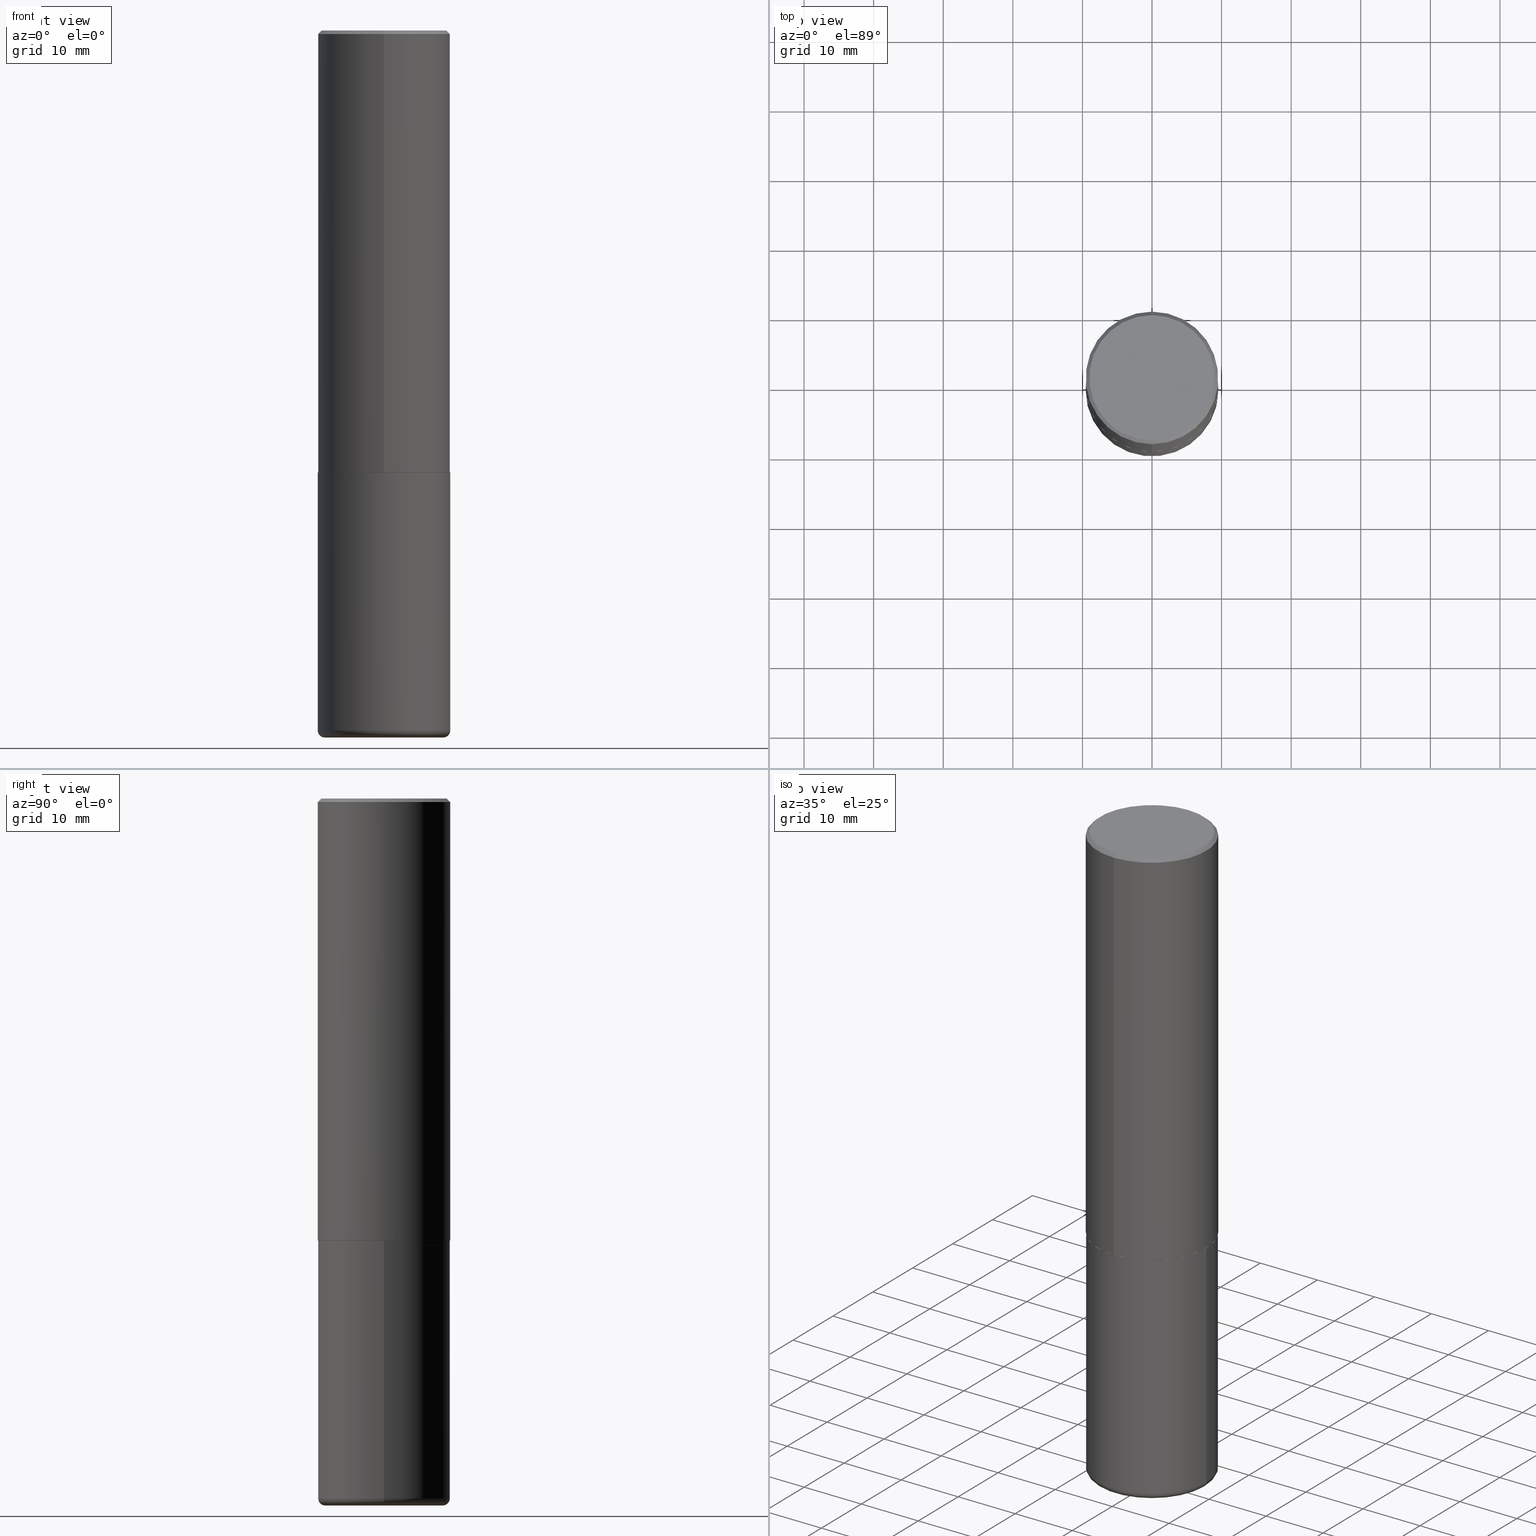
[diagram: canonical four-view strip — front | top / right | iso, engineering-drawing reading convention]
A machine part, canonical four-view strip (front | top / right | iso — engineering-drawing reading convention). The complete STEP part file that produces these views, byte-faithful:
ISO-10303-21;
HEADER;
FILE_DESCRIPTION (( 'STEP AP203' ),
    '1' );
FILE_NAME ('39908.STEP',
    '2024-08-09T15:50:24',
    ( '' ),
    ( '' ),
    'SwSTEP 2.0',
    'SolidWorks 2024',
    '' );
FILE_SCHEMA (( 'CONFIG_CONTROL_DESIGN' ));
ENDSEC;

DATA;
#1 = AXIS2_PLACEMENT_3D ( 'NONE', #414, #122, #254 ) ;
#2 = PLANE ( 'NONE',  #371 ) ;
#3 = CARTESIAN_POINT ( 'NONE',  ( 6.113889277299620571E-29, -8.728392215791821712E-15, -2.500000000000000000 ) ) ;
#4 = EDGE_CURVE ( 'NONE', #305, #245, #123, .T. ) ;
#5 = VERTEX_POINT ( 'NONE', #111 ) ;
#6 = CARTESIAN_POINT ( 'NONE',  ( 9.781875224740546387E-29, -1.396592535537258233E-14, -4.000000000000000000 ) ) ;
#7 = DIRECTION ( 'NONE',  ( -2.445555710919848229E-29, 3.491356886316728133E-15, 1.000000000000000000 ) ) ;
#8 = ORIENTED_EDGE ( 'NONE', *, *, #406, .T. ) ;
#9 = DIRECTION ( 'NONE',  ( -6.982962677686266711E-15, -1.000000000000000000, 2.913971193241878794E-15 ) ) ;
#10 = ORIENTED_EDGE ( 'NONE', *, *, #297, .T. ) ;
#11 = PERSON_AND_ORGANIZATION ( #378, #338 ) ;
#12 = EDGE_LOOP ( 'NONE', ( #214, #293 ) ) ;
#13 = CONICAL_SURFACE ( 'NONE', #197, 0.3739999999999999991, 0.7853981633976873100 ) ;
#14 = CALENDAR_DATE ( 2024, 9, 8 ) ;
#15 = DIRECTION ( 'NONE',  ( 1.000000000000000000, -6.982962677686266711E-15, 4.876176775795935793E-29 ) ) ;
#16 = CIRCLE ( 'NONE', #358, 0.3550000000000002598 ) ;
#17 = ORIENTED_EDGE ( 'NONE', *, *, #287, .T. ) ;
#18 = EDGE_CURVE ( 'NONE', #57, #364, #403, .T. ) ;
#19 = PERSON_AND_ORGANIZATION ( #378, #338 ) ;
#20 = EDGE_LOOP ( 'NONE', ( #335, #408, #271, #151 ) ) ;
#21 = CC_DESIGN_APPROVAL ( #127, ( #141 ) ) ;
#22 = DIRECTION ( 'NONE',  ( -6.982962677686265922E-15, -1.000000000000000000, 3.494488891895536035E-15 ) ) ;
#23 = AXIS2_PLACEMENT_3D ( 'NONE', #43, #202, #41 ) ;
#24 = PERSON_AND_ORGANIZATION ( #378, #338 ) ;
#25 = DIRECTION ( 'NONE',  ( -2.445555710919848229E-29, 3.491356886316728133E-15, 1.000000000000000000 ) ) ;
#26 = DESIGN_CONTEXT ( 'detailed design', #119, 'design' ) ;
#27 = CALENDAR_DATE ( 2024, 9, 8 ) ;
#28 = ADVANCED_FACE ( 'NONE', ( #175 ), #153, .T. ) ;
#29 = FACE_OUTER_BOUND ( 'NONE', #136, .T. ) ;
#30 = DIRECTION ( 'NONE',  ( 6.982962677686265922E-15, 1.000000000000000000, -3.494488891895536035E-15 ) ) ;
#31 = AXIS2_PLACEMENT_3D ( 'NONE', #33, #382, #349 ) ;
#32 = AXIS2_PLACEMENT_3D ( 'NONE', #417, #65, #30 ) ;
#33 = CARTESIAN_POINT ( 'NONE',  ( 9.684056472493140206E-29, -1.382626610181885573E-14, -3.959999999999999964 ) ) ;
#34 = EDGE_CURVE ( 'NONE', #5, #305, #366, .T. ) ;
#35 = CARTESIAN_POINT ( 'NONE',  ( 6.113889277299620571E-29, -8.728392215791821712E-15, -2.500000000000000000 ) ) ;
#36 = PRODUCT_RELATED_PRODUCT_CATEGORY ( 'detail', '', ( #148 ) ) ;
#37 = SHAPE_DEFINITION_REPRESENTATION ( #42, #230 ) ;
#38 = DIRECTION ( 'NONE',  ( 5.024295867789263036E-15, 0.7071067811867189912, 0.7071067811863760433 ) ) ;
#39 = COORDINATED_UNIVERSAL_TIME_OFFSET ( 5, 0, .BEHIND. ) ;
#40 = VECTOR ( 'NONE', #211, 39.37007874015748143 ) ;
#41 = DIRECTION ( 'NONE',  ( -6.982962677686266711E-15, -1.000000000000000000, 2.921762560068730595E-15 ) ) ;
#42 = PRODUCT_DEFINITION_SHAPE ( 'NONE', 'NONE',  #141 ) ;
#43 = CARTESIAN_POINT ( 'NONE',  ( 6.113889277299620571E-29, -8.728392215791821712E-15, -2.500000000000000000 ) ) ;
#44 = CARTESIAN_POINT ( 'NONE',  ( 2.618611004132350411E-15, 0.3749999999999999445, -0.02000000000000139513 ) ) ;
#45 = EDGE_LOOP ( 'NONE', ( #249, #355, #389, #340 ) ) ;
#46 = DIRECTION ( 'NONE',  ( -6.982962677686265922E-15, -1.000000000000000000, 3.494488891895536035E-15 ) ) ;
#47 = CIRCLE ( 'NONE', #279, 0.3750000000000002776 ) ;
#48 = ORIENTED_EDGE ( 'NONE', *, *, #401, .T. ) ;
#49 = ADVANCED_FACE ( 'NONE', ( #178 ), #222, .T. ) ;
#50 = LENGTH_MEASURE_WITH_UNIT ( LENGTH_MEASURE( 0.02539999999999999897 ), #368 );
#51 = ORIENTED_EDGE ( 'NONE', *, *, #109, .F. ) ;
#52 = ADVANCED_FACE ( 'NONE', ( #347 ), #159, .T. ) ;
#53 = ORIENTED_EDGE ( 'NONE', *, *, #401, .F. ) ;
#54 = CONICAL_SURFACE ( 'NONE', #350, 0.3739999999999999991, 0.7853981633976873100 ) ;
#55 = DIRECTION ( 'NONE',  ( 1.000000000000000000, 0.000000000000000000, 0.000000000000000000 ) ) ;
#56 = ORIENTED_EDGE ( 'NONE', *, *, #233, .T. ) ;
#57 = VERTEX_POINT ( 'NONE', #93 ) ;
#58 = LOCAL_TIME ( 11, 50, 24.00000000000000000, #301 ) ;
#59 = VERTEX_POINT ( 'NONE', #63 ) ;
#60 = DIRECTION ( 'NONE',  ( 6.982962677686265922E-15, 1.000000000000000000, -3.491356886316728133E-15 ) ) ;
#61 = DIRECTION ( 'NONE',  ( -6.982962677686265922E-15, -1.000000000000000000, 3.491356886316728527E-15 ) ) ;
#62 = EDGE_CURVE ( 'NONE', #375, #205, #266, .T. ) ;
#63 = CARTESIAN_POINT ( 'NONE',  ( 0.3350000000000000200, -1.630521785239748073E-14, -4.000000000000000000 ) ) ;
#64 = CONICAL_SURFACE ( 'NONE', #113, 0.3750000000000000555, 0.7853981633974465026 ) ;
#65 = DIRECTION ( 'NONE',  ( 2.445555710919848229E-29, -3.491356886316728133E-15, -1.000000000000000000 ) ) ;
#66 = EDGE_CURVE ( 'NONE', #276, #147, #82, .T. ) ;
#67 = DIRECTION ( 'NONE',  ( 1.000000000000000000, -6.982962677686265922E-15, 4.883557194083113462E-29 ) ) ;
#68 = PLANE ( 'NONE',  #94 ) ;
#69 = ORIENTED_EDGE ( 'NONE', *, *, #181, .T. ) ;
#70 = DIRECTION ( 'NONE',  ( -2.445468806185136597E-29, 3.491481338843145583E-15, 1.000000000000000000 ) ) ;
#71 = DIRECTION ( 'NONE',  ( -2.445555710919848229E-29, 3.491356886316728133E-15, 1.000000000000000000 ) ) ;
#72 = CARTESIAN_POINT ( 'NONE',  ( 0.3749999999999999445, -2.618611004132349622E-15, 1.828566290923475642E-29 ) ) ;
#73 = MECHANICAL_CONTEXT ( 'NONE', #336, 'mechanical' ) ;
#74 = EDGE_LOOP ( 'NONE', ( #184, #17, #10, #278 ) ) ;
#75 = DATE_AND_TIME ( #14, #183 ) ;
#76 = CARTESIAN_POINT ( 'NONE',  ( 4.891111421839716706E-31, -6.982713772633485848E-17, -0.02000000000000008715 ) ) ;
#77 = EDGE_CURVE ( 'NONE', #364, #245, #128, .T. ) ;
#78 = SECURITY_CLASSIFICATION_LEVEL ( 'unclassified' ) ;
#79 = LOCAL_TIME ( 11, 50, 24.00000000000000000, #39 ) ;
#80 = CARTESIAN_POINT ( 'NONE',  ( 2.664535259100376486E-15, 0.3750000000000001665, -1.309258832368773493E-15 ) ) ;
#81 = APPROVAL_DATE_TIME ( #270, #127 ) ;
#82 = CIRCLE ( 'NONE', #246, 0.04000000000000004940 ) ;
#83 = ORIENTED_EDGE ( 'NONE', *, *, #322, .F. ) ;
#84 = CONICAL_SURFACE ( 'NONE', #32, 0.3750000000000000555, 0.7853981633974465026 ) ;
#85 = ORIENTED_EDGE ( 'NONE', *, *, #196, .T. ) ;
#86 = ORIENTED_EDGE ( 'NONE', *, *, #62, .F. ) ;
#87 = DATE_TIME_ROLE ( 'classification_date' ) ;
#88 = DIRECTION ( 'NONE',  ( 7.105427357601001859E-15, 1.000000000000000000, -3.491481338843145583E-15 ) ) ;
#89 = CARTESIAN_POINT ( 'NONE',  ( 4.891111421839716706E-31, -6.982713772633485848E-17, -0.02000000000000008715 ) ) ;
#90 = ADVANCED_FACE ( 'NONE', ( #130 ), #64, .T. ) ;
#91 = FACE_OUTER_BOUND ( 'NONE', #410, .T. ) ;
#92 = CC_DESIGN_DATE_AND_TIME_ASSIGNMENT ( #134, #87, ( #391 ) ) ;
#93 = CARTESIAN_POINT ( 'NONE',  ( -2.611628041454602471E-15, -0.3740000000000087699, -2.499999999999999112 ) ) ;
#94 = AXIS2_PLACEMENT_3D ( 'NONE', #166, #291, #132 ) ;
#95 = CARTESIAN_POINT ( 'NONE',  ( -0.3749999999999999445, 2.664535259100375303E-15, -1.844600658845589318E-29 ) ) ;
#96 = AXIS2_PLACEMENT_3D ( 'NONE', #280, #248, #55 ) ;
#97 = CARTESIAN_POINT ( 'NONE',  ( 0.3350000000000000200, -1.616555859884375414E-14, -3.959999999999999964 ) ) ;
#98 = AXIS2_PLACEMENT_3D ( 'NONE', #294, #201, #138 ) ;
#99 = DIRECTION ( 'NONE',  ( 1.000000000000000000, -6.982962677686265922E-15, 0.000000000000000000 ) ) ;
#100 = DIRECTION ( 'NONE',  ( -2.445555710919847948E-29, 3.491356886316728133E-15, 1.000000000000000000 ) ) ;
#101 = APPROVAL ( #379, 'UNSPECIFIED' ) ;
#102 = DIRECTION ( 'NONE',  ( -2.445555710919848229E-29, 3.491356886316728133E-15, 1.000000000000000000 ) ) ;
#103 = EDGE_LOOP ( 'NONE', ( #344, #114 ) ) ;
#104 = CLOSED_SHELL ( 'NONE', ( #262, #49, #125, #90, #188, #385, #315, #152 ) ) ;
#105 = APPROVAL_STATUS ( 'not_yet_approved' ) ;
#106 = ORIENTED_EDGE ( 'NONE', *, *, #311, .F. ) ;
#107 = PERSON_AND_ORGANIZATION_ROLE ( 'creator' ) ;
#108 = ORIENTED_EDGE ( 'NONE', *, *, #274, .T. ) ;
#109 = EDGE_CURVE ( 'NONE', #205, #245, #381, .T. ) ;
#110 = COORDINATED_UNIVERSAL_TIME_OFFSET ( 5, 0, .BEHIND. ) ;
#111 = CARTESIAN_POINT ( 'NONE',  ( 2.664535259100408040E-15, 0.3749999999999915623, -2.499000000000001442 ) ) ;
#112 = CARTESIAN_POINT ( 'NONE',  ( 9.781875224740546387E-29, -1.396592535537258233E-14, -4.000000000000000000 ) ) ;
#113 = AXIS2_PLACEMENT_3D ( 'NONE', #89, #289, #255 ) ;
#114 = ORIENTED_EDGE ( 'NONE', *, *, #194, .T. ) ;
#115 = CIRCLE ( 'NONE', #341, 0.3739999999999999991 ) ;
#116 =( NAMED_UNIT ( * ) PLANE_ANGLE_UNIT ( ) SI_UNIT ( $, .RADIAN. ) );
#117 = ADVANCED_FACE ( 'NONE', ( #259 ), #225, .T. ) ;
#118 = ORIENTED_EDGE ( 'NONE', *, *, #256, .F. ) ;
#119 = APPLICATION_CONTEXT ( 'configuration controlled 3d designs of mechanical parts and assemblies' ) ;
#120 = CC_DESIGN_PERSON_AND_ORGANIZATION_ASSIGNMENT ( #179, #400, ( #141 ) ) ;
#121 = CARTESIAN_POINT ( 'NONE',  ( 6.113672015462842613E-29, -8.728703347107864943E-15, -2.500000000000000000 ) ) ;
#122 = DIRECTION ( 'NONE',  ( -2.445555710919848229E-29, 3.491356886316728133E-15, 1.000000000000000000 ) ) ;
#123 = CIRCLE ( 'NONE', #165, 0.3750000000000000555 ) ;
#124 = VECTOR ( 'NONE', #204, 39.37007874015748143 ) ;
#125 = ADVANCED_FACE ( 'NONE', ( #91 ), #84, .T. ) ;
#126 = CARTESIAN_POINT ( 'NONE',  ( -0.3350000000000000200, -1.144594793702251879E-14, -3.959999999999999964 ) ) ;
#127 = APPROVAL ( #144, 'UNSPECIFIED' ) ;
#128 = LINE ( 'NONE', #257, #370 ) ;
#129 = LOCAL_TIME ( 11, 50, 24.00000000000000000, #110 ) ;
#130 = FACE_OUTER_BOUND ( 'NONE', #331, .T. ) ;
#131 = AXIS2_PLACEMENT_3D ( 'NONE', #158, #286, #282 ) ;
#132 = DIRECTION ( 'NONE',  ( -1.000000000000000000, 6.982962677686265922E-15, -4.876176775795935793E-29 ) ) ;
#133 = ORIENTED_EDGE ( 'NONE', *, *, #18, .T. ) ;
#134 = DATE_AND_TIME ( #250, #209 ) ;
#135 = CARTESIAN_POINT ( 'NONE',  ( 6.113672015462842613E-29, -8.728703347107864943E-15, -2.500000000000000000 ) ) ;
#136 = EDGE_LOOP ( 'NONE', ( #405, #8, #299, #346 ) ) ;
#137 = CC_DESIGN_APPROVAL ( #101, ( #391 ) ) ;
#138 = DIRECTION ( 'NONE',  ( 1.000000000000000000, -6.982962677686269077E-15, 0.000000000000000000 ) ) ;
#139 = VECTOR ( 'NONE', #38, 39.37007874015748143 ) ;
#140 = FACE_OUTER_BOUND ( 'NONE', #216, .T. ) ;
#141 = PRODUCT_DEFINITION ( 'UNKNOWN', '', #157, #26 ) ;
#142 = CARTESIAN_POINT ( 'NONE',  ( -2.618611004132290852E-15, -0.3750000000000090483, -2.498999999999999222 ) ) ;
#143 = VERTEX_POINT ( 'NONE', #192 ) ;
#144 = APPROVAL_STATUS ( 'not_yet_approved' ) ;
#145 = ORIENTED_EDGE ( 'NONE', *, *, #66, .T. ) ;
#146 = APPROVAL_DATE_TIME ( #75, #160 ) ;
#147 = VERTEX_POINT ( 'NONE', #162 ) ;
#148 = PRODUCT ( '39908', '39908', '', ( #73 ) ) ;
#149 = VERTEX_POINT ( 'NONE', #288 ) ;
#150 = CALENDAR_DATE ( 2024, 9, 8 ) ;
#151 = ORIENTED_EDGE ( 'NONE', *, *, #18, .F. ) ;
#152 = ADVANCED_FACE ( 'NONE', ( #312 ), #412, .F. ) ;
#153 = CYLINDRICAL_SURFACE ( 'NONE', #383, 0.3749999999999999445 ) ;
#154 = AXIS2_PLACEMENT_3D ( 'NONE', #121, #251, #377 ) ;
#155 = DIRECTION ( 'NONE',  ( -6.982962677686266711E-15, -1.000000000000000000, 2.921762560068730595E-15 ) ) ;
#156 = FACE_OUTER_BOUND ( 'NONE', #172, .T. ) ;
#157 = PRODUCT_DEFINITION_FORMATION_WITH_SPECIFIED_SOURCE ( 'ANY', '', #148, .NOT_KNOWN. ) ;
#158 = CARTESIAN_POINT ( 'NONE',  ( 5.533689563900664122E-45, -7.900079756676948008E-31, -2.262753426221999295E-16 ) ) ;
#159 = TOROIDAL_SURFACE ( 'NONE', #31, 0.3350000000000000200, 0.04000000000000001471 ) ;
#160 = APPROVAL ( #105, 'UNSPECIFIED' ) ;
#161 = CIRCLE ( 'NONE', #395, 0.3350000000000000200 ) ;
#162 = CARTESIAN_POINT ( 'NONE',  ( -0.3750000000000000555, -1.116173084271848004E-14, -3.959999999999999964 ) ) ;
#163 = DIRECTION ( 'NONE',  ( -1.000000000000000000, 7.105427357601014480E-15, 0.000000000000000000 ) ) ;
#164 = DIRECTION ( 'NONE',  ( -6.982962677686266711E-15, -1.000000000000000000, 2.913971193241878794E-15 ) ) ;
#165 = AXIS2_PLACEMENT_3D ( 'NONE', #76, #310, #22 ) ;
#166 = CARTESIAN_POINT ( 'NONE',  ( 6.113672015462842613E-29, -8.728703347107864943E-15, -2.500000000000000000 ) ) ;
#167 = DIRECTION ( 'NONE',  ( -6.982962677686266711E-15, -1.000000000000000000, 2.921762560068730595E-15 ) ) ;
#168 = EDGE_CURVE ( 'NONE', #143, #57, #115, .T. ) ;
#169 = CARTESIAN_POINT ( 'NONE',  ( 0.3750000000000000555, -1.134731435124021338E-14, -2.500000000000000000 ) ) ;
#170 = AXIS2_PLACEMENT_3D ( 'NONE', #330, #390, #46 ) ;
#171 = DIRECTION ( 'NONE',  ( 1.000000000000000000, -6.982962677686265922E-15, 0.000000000000000000 ) ) ;
#172 = EDGE_LOOP ( 'NONE', ( #231, #402, #180, #361 ) ) ;
#173 = APPLICATION_PROTOCOL_DEFINITION ( 'international standard', 'config_control_design', 1994, #119 ) ;
#174 = ORIENTED_EDGE ( 'NONE', *, *, #194, .F. ) ;
#175 = FACE_OUTER_BOUND ( 'NONE', #307, .T. ) ;
#176 = AXIS2_PLACEMENT_3D ( 'NONE', #359, #7, #164 ) ;
#177 = PLANE ( 'NONE',  #413 ) ;
#178 = FACE_OUTER_BOUND ( 'NONE', #45, .T. ) ;
#179 = PERSON_AND_ORGANIZATION ( #378, #338 ) ;
#180 = ORIENTED_EDGE ( 'NONE', *, *, #77, .T. ) ;
#181 = EDGE_CURVE ( 'NONE', #149, #247, #260, .T. ) ;
#182 = APPLICATION_PROTOCOL_DEFINITION ( 'international standard', 'config_control_design', 1994, #336 ) ;
#183 = LOCAL_TIME ( 11, 50, 24.00000000000000000, #239 ) ;
#184 = ORIENTED_EDGE ( 'NONE', *, *, #66, .F. ) ;
#185 = ADVANCED_FACE ( 'NONE', ( #29 ), #219, .T. ) ;
#186 = AXIS2_PLACEMENT_3D ( 'NONE', #351, #416, #67 ) ;
#187 = EDGE_LOOP ( 'NONE', ( #48, #69 ) ) ;
#188 = ADVANCED_FACE ( 'NONE', ( #156 ), #284, .T. ) ;
#189 = DIRECTION ( 'NONE',  ( -2.445468806185136597E-29, 3.491481338843145583E-15, 1.000000000000000000 ) ) ;
#190 = APPROVAL_DATE_TIME ( #252, #101 ) ;
#191 = CARTESIAN_POINT ( 'NONE',  ( 9.781875224740546387E-29, -1.396592535537258233E-14, -4.000000000000000000 ) ) ;
#192 = CARTESIAN_POINT ( 'NONE',  ( 2.660982545421636724E-15, 0.3739999999999912839, -2.500000000000001332 ) ) ;
#193 = CARTESIAN_POINT ( 'NONE',  ( 2.478951750578626181E-15, 0.3550000000000002598, -1.352569365953539290E-15 ) ) ;
#194 = EDGE_CURVE ( 'NONE', #205, #375, #16, .T. ) ;
#195 = CARTESIAN_POINT ( 'NONE',  ( -0.3350000000000000200, -1.137366901664736350E-14, -4.000000000000000000 ) ) ;
#196 = EDGE_CURVE ( 'NONE', #59, #276, #253, .T. ) ;
#197 = AXIS2_PLACEMENT_3D ( 'NONE', #3, #102, #261 ) ;
#198 = FACE_OUTER_BOUND ( 'NONE', #187, .T. ) ;
#199 = EDGE_LOOP ( 'NONE', ( #85, #145, #273, #300 ) ) ;
#200 = AXIS2_PLACEMENT_3D ( 'NONE', #221, #189, #313 ) ;
#201 = DIRECTION ( 'NONE',  ( -2.445468806185136597E-29, 3.491481338843145583E-15, 1.000000000000000000 ) ) ;
#202 = DIRECTION ( 'NONE',  ( -2.445555710919848229E-29, 3.491356886316728133E-15, 1.000000000000000000 ) ) ;
#203 = AXIS2_PLACEMENT_3D ( 'NONE', #135, #70, #325 ) ;
#204 = DIRECTION ( 'NONE',  ( 4.937700262164538576E-15, 0.7071067811865437980, -0.7071067811865512365 ) ) ;
#205 = VERTEX_POINT ( 'NONE', #362 ) ;
#206 = CIRCLE ( 'NONE', #23, 0.3739999999999999991 ) ;
#207 = CARTESIAN_POINT ( 'NONE',  ( 9.684056472493140206E-29, -1.382626610181885573E-14, -3.959999999999999964 ) ) ;
#208 = ORIENTED_EDGE ( 'NONE', *, *, #109, .T. ) ;
#209 = LOCAL_TIME ( 11, 50, 24.00000000000000000, #387 ) ;
#210 = PERSON_AND_ORGANIZATION ( #378, #338 ) ;
#211 = DIRECTION ( 'NONE',  ( -2.445555710919848229E-29, 3.491356886316728133E-15, 1.000000000000000000 ) ) ;
#212 = CIRCLE ( 'NONE', #317, 0.04000000000000004940 ) ;
#213 =( NAMED_UNIT ( * ) SI_UNIT ( $, .STERADIAN. ) SOLID_ANGLE_UNIT ( ) );
#214 = ORIENTED_EDGE ( 'NONE', *, *, #196, .F. ) ;
#215 = PERSON_AND_ORGANIZATION ( #378, #338 ) ;
#216 = EDGE_LOOP ( 'NONE', ( #118, #269 ) ) ;
#217 = MANIFOLD_SOLID_BREP ( 'Body-Move/Copy2[1]', #235 ) ;
#218 = ORIENTED_EDGE ( 'NONE', *, *, #393, .T. ) ;
#219 = CYLINDRICAL_SURFACE ( 'NONE', #200, 0.3749999999999999445 ) ;
#220 = CC_DESIGN_PERSON_AND_ORGANIZATION_ASSIGNMENT ( #272, #107, ( #157 ) ) ;
#221 = CARTESIAN_POINT ( 'NONE',  ( 0.000000000000000000, 0.000000000000000000, 0.000000000000000000 ) ) ;
#222 = CYLINDRICAL_SURFACE ( 'NONE', #363, 0.3750000000000001665 ) ;
#223 = EDGE_CURVE ( 'NONE', #375, #305, #267, .T. ) ;
#224 = CARTESIAN_POINT ( 'NONE',  ( -2.572686749164323547E-15, -0.3750000000000001110, -0.01999999999999877570 ) ) ;
#225 = TOROIDAL_SURFACE ( 'NONE', #186, 0.3350000000000000200, 0.04000000000000001471 ) ;
#226 = VECTOR ( 'NONE', #265, 39.37007874015748143 ) ;
#227 = DIRECTION ( 'NONE',  ( -6.982962677686266711E-15, -1.000000000000000000, 3.491356886316727738E-15 ) ) ;
#228 = EDGE_CURVE ( 'NONE', #364, #5, #285, .T. ) ;
#229 = LINE ( 'NONE', #394, #139 ) ;
#230 = ADVANCED_BREP_SHAPE_REPRESENTATION ( '39908', ( #217, #353, #96 ), #232 ) ;
#231 = ORIENTED_EDGE ( 'NONE', *, *, #34, .F. ) ;
#232 =( GEOMETRIC_REPRESENTATION_CONTEXT ( 3 ) GLOBAL_UNCERTAINTY_ASSIGNED_CONTEXT ( ( #411 ) ) GLOBAL_UNIT_ASSIGNED_CONTEXT ( ( #306, #116, #213 ) ) REPRESENTATION_CONTEXT ( 'NONE', 'WORKASPACE' ) );
#233 = EDGE_CURVE ( 'NONE', #245, #305, #333, .T. ) ;
#234 = DIRECTION ( 'NONE',  ( -2.445555710919848229E-29, 3.491356886316728133E-15, 1.000000000000000000 ) ) ;
#235 = CLOSED_SHELL ( 'NONE', ( #28, #52, #345, #185, #117, #409 ) ) ;
#236 = CARTESIAN_POINT ( 'NONE',  ( 2.618611004132350411E-15, 0.3749999999999999445, -0.02000000000000139513 ) ) ;
#237 = CARTESIAN_POINT ( 'NONE',  ( 6.113889277299620571E-29, -8.728392215791821712E-15, -2.500000000000000000 ) ) ;
#238 = FACE_OUTER_BOUND ( 'NONE', #20, .T. ) ;
#239 = COORDINATED_UNIVERSAL_TIME_OFFSET ( 5, 0, .BEHIND. ) ;
#240 = ORIENTED_EDGE ( 'NONE', *, *, #223, .T. ) ;
#241 = CC_DESIGN_DATE_AND_TIME_ASSIGNMENT ( #404, #343, ( #141 ) ) ;
#242 = PERSON_AND_ORGANIZATION ( #378, #338 ) ;
#243 = DIRECTION ( 'NONE',  ( -4.937700262165728178E-15, -0.7071067811867141062, 0.7071067811863809283 ) ) ;
#244 = APPROVAL_ROLE ( '' ) ;
#245 = VERTEX_POINT ( 'NONE', #323 ) ;
#246 = AXIS2_PLACEMENT_3D ( 'NONE', #126, #88, #163 ) ;
#247 = VERTEX_POINT ( 'NONE', #169 ) ;
#248 = DIRECTION ( 'NONE',  ( 0.000000000000000000, 0.000000000000000000, 1.000000000000000000 ) ) ;
#249 = ORIENTED_EDGE ( 'NONE', *, *, #228, .T. ) ;
#250 = CALENDAR_DATE ( 2024, 9, 8 ) ;
#251 = DIRECTION ( 'NONE',  ( -2.445468806185136597E-29, 3.491481338843145583E-15, 1.000000000000000000 ) ) ;
#252 = DATE_AND_TIME ( #27, #79 ) ;
#253 = CIRCLE ( 'NONE', #303, 0.3350000000000000200 ) ;
#254 = DIRECTION ( 'NONE',  ( -6.982962677686266711E-15, -1.000000000000000000, 3.491356886316727738E-15 ) ) ;
#255 = DIRECTION ( 'NONE',  ( 6.982962677686265922E-15, 1.000000000000000000, -3.494488891895536035E-15 ) ) ;
#256 = EDGE_CURVE ( 'NONE', #57, #143, #206, .T. ) ;
#257 = CARTESIAN_POINT ( 'NONE',  ( -2.618611004132351200E-15, -0.3750000000000001665, 1.309258832368773493E-15 ) ) ;
#258 = CC_DESIGN_PERSON_AND_ORGANIZATION_ASSIGNMENT ( #210, #321, ( #391 ) ) ;
#259 = FACE_OUTER_BOUND ( 'NONE', #74, .T. ) ;
#260 = CIRCLE ( 'NONE', #154, 0.3750000000000000555 ) ;
#261 = DIRECTION ( 'NONE',  ( -6.982962677686266711E-15, -1.000000000000000000, 2.921762560068730595E-15 ) ) ;
#262 = ADVANCED_FACE ( 'NONE', ( #238 ), #54, .T. ) ;
#263 = DIRECTION ( 'NONE',  ( -6.982962677686265922E-15, -1.000000000000000000, 3.491356886316728133E-15 ) ) ;
#264 = APPROVAL_PERSON_ORGANIZATION ( #24, #101, #319 ) ;
#265 = DIRECTION ( 'NONE',  ( -2.445468806185136877E-29, 3.491481338843145188E-15, 1.000000000000000000 ) ) ;
#266 = CIRCLE ( 'NONE', #131, 0.3550000000000002598 ) ;
#267 = LINE ( 'NONE', #236, #124 ) ;
#268 = CARTESIAN_POINT ( 'NONE',  ( 0.3750000000000000555, -1.644487710595120733E-14, -3.959999999999999964 ) ) ;
#269 = ORIENTED_EDGE ( 'NONE', *, *, #168, .F. ) ;
#270 = DATE_AND_TIME ( #275, #129 ) ;
#271 = ORIENTED_EDGE ( 'NONE', *, *, #228, .F. ) ;
#272 = PERSON_AND_ORGANIZATION ( #378, #338 ) ;
#273 = ORIENTED_EDGE ( 'NONE', *, *, #274, .F. ) ;
#274 = EDGE_CURVE ( 'NONE', #373, #147, #415, .T. ) ;
#275 = CALENDAR_DATE ( 2024, 9, 8 ) ;
#276 = VERTEX_POINT ( 'NONE', #195 ) ;
#277 = FACE_OUTER_BOUND ( 'NONE', #12, .T. ) ;
#278 = ORIENTED_EDGE ( 'NONE', *, *, #406, .F. ) ;
#279 = AXIS2_PLACEMENT_3D ( 'NONE', #320, #234, #9 ) ;
#280 = CARTESIAN_POINT ( 'NONE',  ( 0.000000000000000000, 0.000000000000000000, 0.000000000000000000 ) ) ;
#281 = CARTESIAN_POINT ( 'NONE',  ( 0.000000000000000000, 0.000000000000000000, 0.000000000000000000 ) ) ;
#282 = DIRECTION ( 'NONE',  ( -6.982962677686265922E-15, -1.000000000000000000, 3.491356886316728527E-15 ) ) ;
#283 = CIRCLE ( 'NONE', #399, 0.3749999999999999445 ) ;
#284 = CYLINDRICAL_SURFACE ( 'NONE', #1, 0.3750000000000001665 ) ;
#285 = CIRCLE ( 'NONE', #176, 0.3750000000000002776 ) ;
#286 = DIRECTION ( 'NONE',  ( -2.445555710919848229E-29, 3.491356886316728133E-15, 1.000000000000000000 ) ) ;
#287 = EDGE_CURVE ( 'NONE', #276, #59, #161, .T. ) ;
#288 = CARTESIAN_POINT ( 'NONE',  ( -0.3750000000000000555, -8.612949465362985430E-15, -2.500000000000000000 ) ) ;
#289 = DIRECTION ( 'NONE',  ( 2.445555710919848229E-29, -3.491356886316728133E-15, -1.000000000000000000 ) ) ;
#290 = CC_DESIGN_APPROVAL ( #160, ( #157 ) ) ;
#291 = DIRECTION ( 'NONE',  ( 2.438088387897960049E-29, -3.491481338843145188E-15, -1.000000000000000000 ) ) ;
#292 = DIRECTION ( 'NONE',  ( -6.982962677686266711E-15, -1.000000000000000000, 3.491481338843145583E-15 ) ) ;
#293 = ORIENTED_EDGE ( 'NONE', *, *, #287, .F. ) ;
#294 = CARTESIAN_POINT ( 'NONE',  ( 9.684056472493140206E-29, -1.382626610181885573E-14, -3.959999999999999964 ) ) ;
#295 = DIRECTION ( 'NONE',  ( -2.445468806185136597E-29, 3.491481338843145583E-15, 1.000000000000000000 ) ) ;
#296 = VECTOR ( 'NONE', #352, 39.37007874015748143 ) ;
#297 = EDGE_CURVE ( 'NONE', #59, #373, #212, .T. ) ;
#298 = DIRECTION ( 'NONE',  ( 1.000000000000000000, -6.982962677686275388E-15, 0.000000000000000000 ) ) ;
#299 = ORIENTED_EDGE ( 'NONE', *, *, #322, .T. ) ;
#300 = ORIENTED_EDGE ( 'NONE', *, *, #297, .F. ) ;
#301 = COORDINATED_UNIVERSAL_TIME_OFFSET ( 5, 0, .BEHIND. ) ;
#302 = DIRECTION ( 'NONE',  ( -2.445468806185136597E-29, 3.491481338843145583E-15, 1.000000000000000000 ) ) ;
#303 = AXIS2_PLACEMENT_3D ( 'NONE', #191, #295, #99 ) ;
#304 = DIRECTION ( 'NONE',  ( -1.000000000000000000, 6.982962677686265922E-15, -4.876176775795935793E-29 ) ) ;
#305 = VERTEX_POINT ( 'NONE', #44 ) ;
#306 =( CONVERSION_BASED_UNIT ( 'INCH', #50 ) LENGTH_UNIT ( ) NAMED_UNIT ( #392 ) );
#307 = EDGE_LOOP ( 'NONE', ( #108, #218, #53, #83 ) ) ;
#308 = APPROVAL_PERSON_ORGANIZATION ( #11, #127, #372 ) ;
#309 = DIRECTION ( 'NONE',  ( -2.445468806185136597E-29, 3.491481338843145583E-15, 1.000000000000000000 ) ) ;
#310 = DIRECTION ( 'NONE',  ( -2.445555710919848229E-29, 3.491356886316728133E-15, 1.000000000000000000 ) ) ;
#311 = EDGE_CURVE ( 'NONE', #143, #5, #229, .T. ) ;
#312 = FACE_OUTER_BOUND ( 'NONE', #103, .T. ) ;
#313 = DIRECTION ( 'NONE',  ( 1.000000000000000000, -6.982962677686266711E-15, 4.876176775795935793E-29 ) ) ;
#314 = CIRCLE ( 'NONE', #203, 0.3750000000000000555 ) ;
#315 = ADVANCED_FACE ( 'NONE', ( #140 ), #2, .F. ) ;
#316 = DIRECTION ( 'NONE',  ( -2.445555710919848229E-29, 3.491356886316728133E-15, 1.000000000000000000 ) ) ;
#317 = AXIS2_PLACEMENT_3D ( 'NONE', #97, #292, #298 ) ;
#318 = DIRECTION ( 'NONE',  ( 2.445555710919847948E-29, -3.491356886316728133E-15, -1.000000000000000000 ) ) ;
#319 = APPROVAL_ROLE ( '' ) ;
#320 = CARTESIAN_POINT ( 'NONE',  ( 6.111443721588701169E-29, -8.724900858905505270E-15, -2.499000000000000110 ) ) ;
#321 = PERSON_AND_ORGANIZATION_ROLE ( 'classification_officer' ) ;
#322 = EDGE_CURVE ( 'NONE', #373, #247, #360, .T. ) ;
#323 = CARTESIAN_POINT ( 'NONE',  ( -2.572686749164323547E-15, -0.3750000000000001110, -0.01999999999999877570 ) ) ;
#324 = ORIENTED_EDGE ( 'NONE', *, *, #168, .T. ) ;
#325 = DIRECTION ( 'NONE',  ( 1.000000000000000000, -6.982962677686264344E-15, 0.000000000000000000 ) ) ;
#326 = DIRECTION ( 'NONE',  ( -2.445468806185136597E-29, 3.491481338843145583E-15, 1.000000000000000000 ) ) ;
#327 = EDGE_CURVE ( 'NONE', #5, #364, #47, .T. ) ;
#328 = ORIENTED_EDGE ( 'NONE', *, *, #4, .T. ) ;
#329 = APPROVAL_PERSON_ORGANIZATION ( #19, #160, #244 ) ;
#330 = CARTESIAN_POINT ( 'NONE',  ( 4.891111421839716706E-31, -6.982713772633485848E-17, -0.02000000000000008715 ) ) ;
#331 = EDGE_LOOP ( 'NONE', ( #51, #86, #240, #328 ) ) ;
#332 = CC_DESIGN_PERSON_AND_ORGANIZATION_ASSIGNMENT ( #242, #365, ( #157 ) ) ;
#333 = CIRCLE ( 'NONE', #170, 0.3750000000000000555 ) ;
#334 = PERSON_AND_ORGANIZATION_ROLE ( 'design_owner' ) ;
#335 = ORIENTED_EDGE ( 'NONE', *, *, #256, .T. ) ;
#336 = APPLICATION_CONTEXT ( 'configuration controlled 3d designs of mechanical parts and assemblies' ) ;
#337 = CARTESIAN_POINT ( 'NONE',  ( -2.611628041454602471E-15, -0.3740000000000087699, -2.499999999999999112 ) ) ;
#338 = ORGANIZATION ( 'UNSPECIFIED', 'UNSPECIFIED', '' ) ;
#339 = DIRECTION ( 'NONE',  ( 1.000000000000000000, -6.982962677686269077E-15, 0.000000000000000000 ) ) ;
#340 = ORIENTED_EDGE ( 'NONE', *, *, #77, .F. ) ;
#341 = AXIS2_PLACEMENT_3D ( 'NONE', #35, #25, #155 ) ;
#342 = ORIENTED_EDGE ( 'NONE', *, *, #223, .F. ) ;
#343 = DATE_TIME_ROLE ( 'creation_date' ) ;
#344 = ORIENTED_EDGE ( 'NONE', *, *, #62, .T. ) ;
#345 = ADVANCED_FACE ( 'NONE', ( #198 ), #68, .F. ) ;
#346 = ORIENTED_EDGE ( 'NONE', *, *, #181, .F. ) ;
#347 = FACE_OUTER_BOUND ( 'NONE', #199, .T. ) ;
#348 = DIRECTION ( 'NONE',  ( -2.445555710919848229E-29, 3.491356886316728133E-15, 1.000000000000000000 ) ) ;
#349 = DIRECTION ( 'NONE',  ( 1.000000000000000000, -6.982962677686265922E-15, 4.883557194083113462E-29 ) ) ;
#350 = AXIS2_PLACEMENT_3D ( 'NONE', #237, #71, #167 ) ;
#351 = CARTESIAN_POINT ( 'NONE',  ( 9.684056472493140206E-29, -1.382626610181885573E-14, -3.959999999999999964 ) ) ;
#352 = DIRECTION ( 'NONE',  ( -4.851104656540954809E-15, -0.7071067811865486830, -0.7071067811865463515 ) ) ;
#353 = MANIFOLD_SOLID_BREP ( 'Body-Move/Copy2[2]', #104 ) ;
#354 = DIRECTION ( 'NONE',  ( -2.445468806185136877E-29, 3.491481338843145188E-15, 1.000000000000000000 ) ) ;
#355 = ORIENTED_EDGE ( 'NONE', *, *, #34, .T. ) ;
#356 = VECTOR ( 'NONE', #243, 39.37007874015748143 ) ;
#357 = CARTESIAN_POINT ( 'NONE',  ( 2.548781377355488296E-15, 0.3550000000000002598, -1.465707037264639255E-15 ) ) ;
#358 = AXIS2_PLACEMENT_3D ( 'NONE', #380, #348, #61 ) ;
#359 = CARTESIAN_POINT ( 'NONE',  ( 6.111443721588701169E-29, -8.724900858905505270E-15, -2.499000000000000110 ) ) ;
#360 = LINE ( 'NONE', #72, #226 ) ;
#361 = ORIENTED_EDGE ( 'NONE', *, *, #4, .F. ) ;
#362 = CARTESIAN_POINT ( 'NONE',  ( -2.504081769186609399E-15, -0.3550000000000002598, 1.013156352020239593E-15 ) ) ;
#363 = AXIS2_PLACEMENT_3D ( 'NONE', #386, #418, #227 ) ;
#364 = VERTEX_POINT ( 'NONE', #142 ) ;
#365 = PERSON_AND_ORGANIZATION_ROLE ( 'design_supplier' ) ;
#366 = LINE ( 'NONE', #80, #40 ) ;
#367 = CC_DESIGN_SECURITY_CLASSIFICATION ( #391, ( #157 ) ) ;
#368 =( LENGTH_UNIT ( ) NAMED_UNIT ( * ) SI_UNIT ( $, .METRE. ) );
#369 = ORIENTED_EDGE ( 'NONE', *, *, #327, .F. ) ;
#370 = VECTOR ( 'NONE', #316, 39.37007874015748143 ) ;
#371 = AXIS2_PLACEMENT_3D ( 'NONE', #396, #100, #263 ) ;
#372 = APPROVAL_ROLE ( '' ) ;
#373 = VERTEX_POINT ( 'NONE', #268 ) ;
#374 = CC_DESIGN_PERSON_AND_ORGANIZATION_ASSIGNMENT ( #215, #334, ( #148 ) ) ;
#375 = VERTEX_POINT ( 'NONE', #357 ) ;
#376 = VECTOR ( 'NONE', #354, 39.37007874015748143 ) ;
#377 = DIRECTION ( 'NONE',  ( 1.000000000000000000, -6.982962677686264344E-15, 0.000000000000000000 ) ) ;
#378 = PERSON ( 'UNSPECIFIED', 'UNSPECIFIED', 'UNSPECIFIED', ('UNSPECIFIED'), ('UNSPECIFIED'), ('UNSPECIFIED') ) ;
#379 = APPROVAL_STATUS ( 'not_yet_approved' ) ;
#380 = CARTESIAN_POINT ( 'NONE',  ( 5.533689563900664122E-45, -7.900079756676948008E-31, -2.262753426221999295E-16 ) ) ;
#381 = LINE ( 'NONE', #224, #296 ) ;
#382 = DIRECTION ( 'NONE',  ( -2.445468806185136597E-29, 3.491481338843145583E-15, 1.000000000000000000 ) ) ;
#383 = AXIS2_PLACEMENT_3D ( 'NONE', #281, #302, #15 ) ;
#384 = AXIS2_PLACEMENT_3D ( 'NONE', #193, #318, #60 ) ;
#385 = ADVANCED_FACE ( 'NONE', ( #397 ), #13, .T. ) ;
#386 = CARTESIAN_POINT ( 'NONE',  ( 0.000000000000000000, 0.000000000000000000, 0.000000000000000000 ) ) ;
#387 = COORDINATED_UNIVERSAL_TIME_OFFSET ( 5, 0, .BEHIND. ) ;
#388 = LINE ( 'NONE', #95, #376 ) ;
#389 = ORIENTED_EDGE ( 'NONE', *, *, #233, .F. ) ;
#390 = DIRECTION ( 'NONE',  ( -2.445555710919848229E-29, 3.491356886316728133E-15, 1.000000000000000000 ) ) ;
#391 = SECURITY_CLASSIFICATION ( '', '', #78 ) ;
#392 = DIMENSIONAL_EXPONENTS ( 1.000000000000000000, 0.000000000000000000, 0.000000000000000000, 0.000000000000000000, 0.000000000000000000, 0.000000000000000000, 0.000000000000000000 ) ;
#393 = EDGE_CURVE ( 'NONE', #147, #149, #388, .T. ) ;
#394 = CARTESIAN_POINT ( 'NONE',  ( 2.657429831742835431E-15, 0.3739999999999912839, -2.500000000000001332 ) ) ;
#395 = AXIS2_PLACEMENT_3D ( 'NONE', #6, #326, #171 ) ;
#396 = CARTESIAN_POINT ( 'NONE',  ( 6.113889277299620571E-29, -8.728392215791821712E-15, -2.500000000000000000 ) ) ;
#397 = FACE_OUTER_BOUND ( 'NONE', #398, .T. ) ;
#398 = EDGE_LOOP ( 'NONE', ( #106, #324, #133, #369 ) ) ;
#399 = AXIS2_PLACEMENT_3D ( 'NONE', #207, #309, #339 ) ;
#400 = PERSON_AND_ORGANIZATION_ROLE ( 'creator' ) ;
#401 = EDGE_CURVE ( 'NONE', #247, #149, #314, .T. ) ;
#402 = ORIENTED_EDGE ( 'NONE', *, *, #327, .T. ) ;
#403 = LINE ( 'NONE', #337, #356 ) ;
#404 = DATE_AND_TIME ( #150, #58 ) ;
#405 = ORIENTED_EDGE ( 'NONE', *, *, #393, .F. ) ;
#406 = EDGE_CURVE ( 'NONE', #147, #373, #283, .T. ) ;
#407 = DIRECTION ( 'NONE',  ( 2.438088387897960049E-29, -3.491481338843145188E-15, -1.000000000000000000 ) ) ;
#408 = ORIENTED_EDGE ( 'NONE', *, *, #311, .T. ) ;
#409 = ADVANCED_FACE ( 'NONE', ( #277 ), #177, .T. ) ;
#410 = EDGE_LOOP ( 'NONE', ( #174, #208, #56, #342 ) ) ;
#411 = UNCERTAINTY_MEASURE_WITH_UNIT (LENGTH_MEASURE( 1.000000000000000082E-05 ), #306, 'distance_accuracy_value', 'NONE');
#412 = PLANE ( 'NONE',  #384 ) ;
#413 = AXIS2_PLACEMENT_3D ( 'NONE', #112, #407, #304 ) ;
#414 = CARTESIAN_POINT ( 'NONE',  ( 0.000000000000000000, 0.000000000000000000, 0.000000000000000000 ) ) ;
#415 = CIRCLE ( 'NONE', #98, 0.3749999999999999445 ) ;
#416 = DIRECTION ( 'NONE',  ( -2.445468806185136597E-29, 3.491481338843145583E-15, 1.000000000000000000 ) ) ;
#417 = CARTESIAN_POINT ( 'NONE',  ( 4.891111421839716706E-31, -6.982713772633485848E-17, -0.02000000000000008715 ) ) ;
#418 = DIRECTION ( 'NONE',  ( -2.445555710919848229E-29, 3.491356886316728133E-15, 1.000000000000000000 ) ) ;
ENDSEC;
END-ISO-10303-21;
